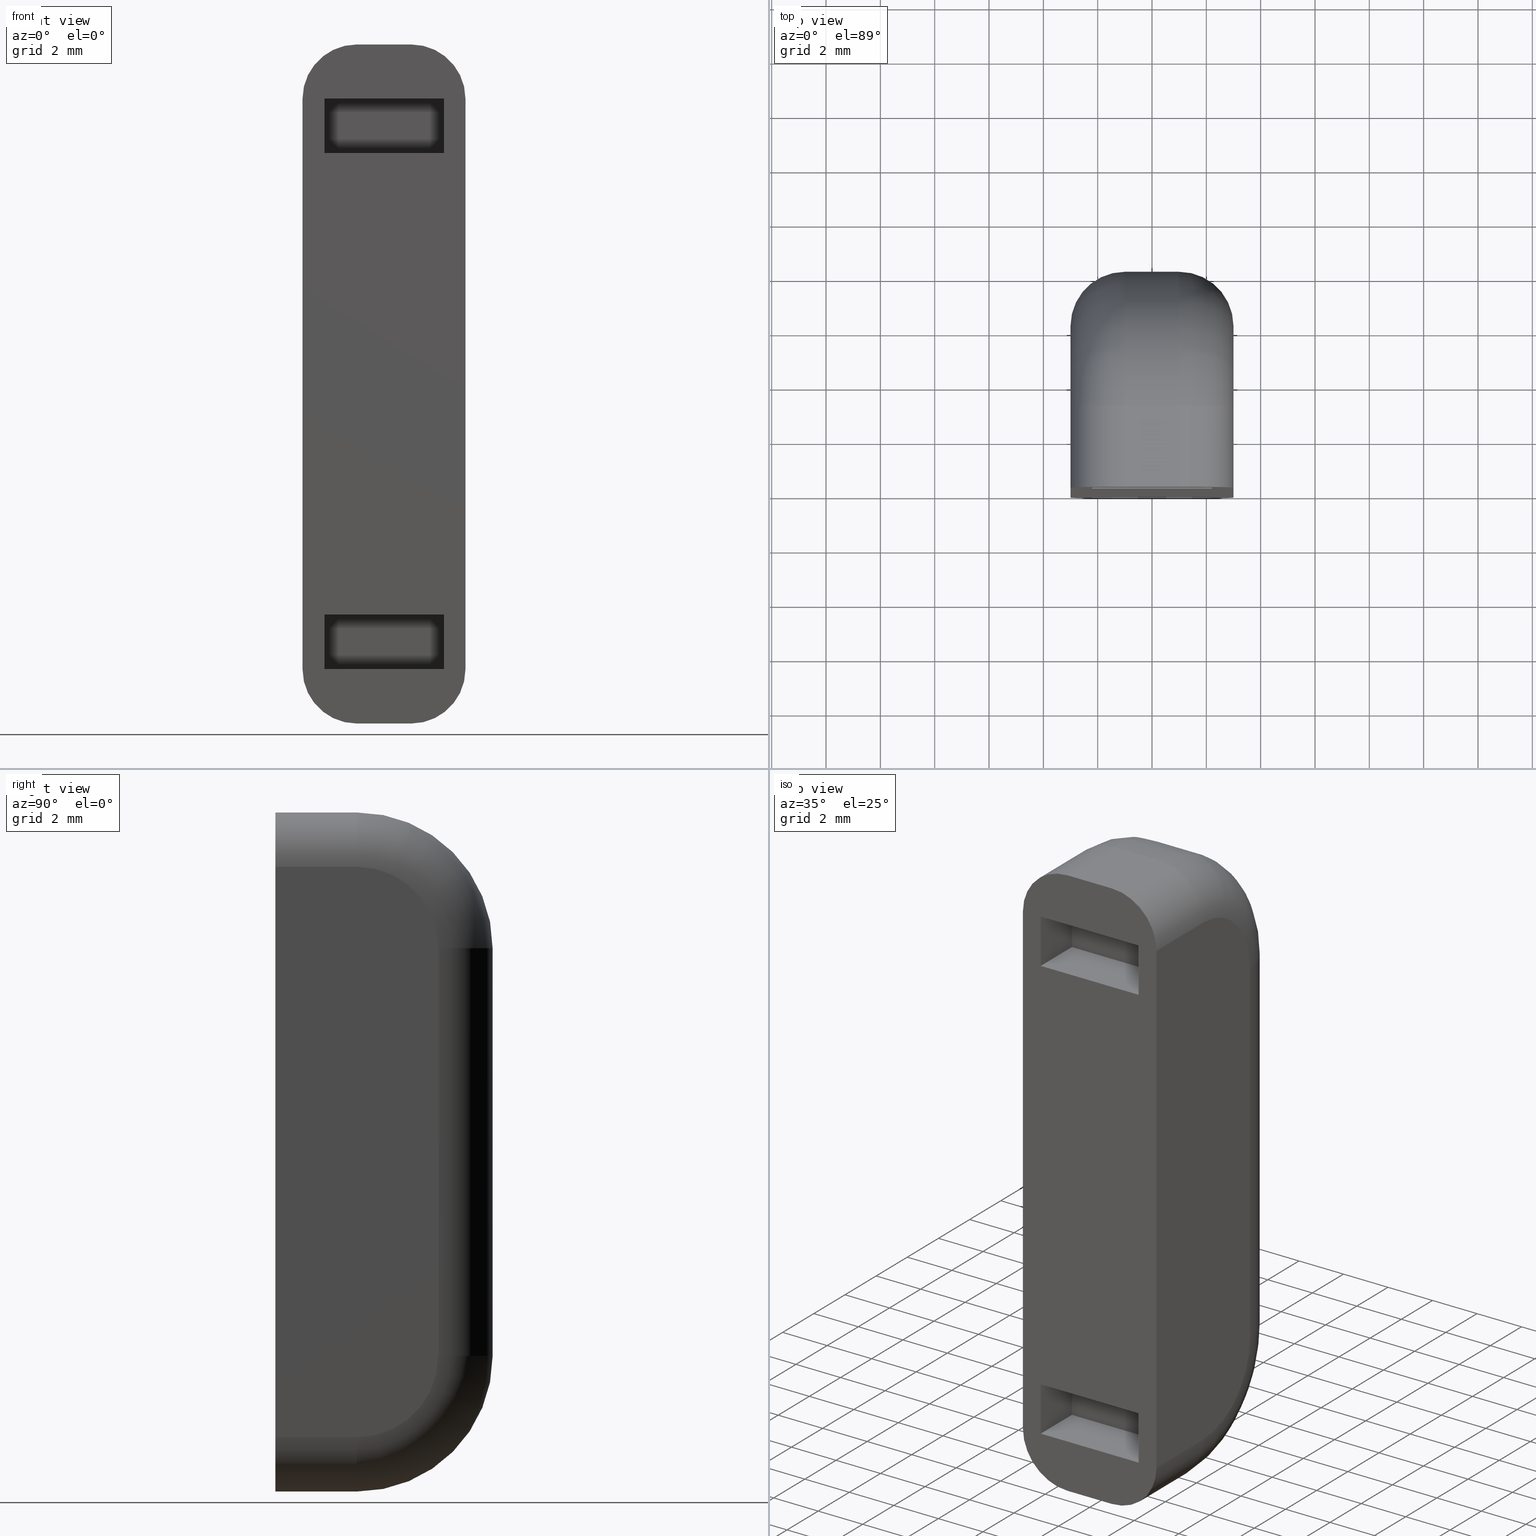
[diagram: canonical four-view strip — front | top / right | iso, engineering-drawing reading convention]
A machine part, canonical four-view strip (front | top / right | iso — engineering-drawing reading convention). The complete STEP part file that produces these views, byte-faithful:
ISO-10303-21;
HEADER;
/* Generated by software containing ST-Developer
 * from STEP Tools, Inc. (www.steptools.com) 
 */

FILE_DESCRIPTION(
/* description */ ('WKZ-0463'),
/* implementation_level */ '2;1');

FILE_NAME(
/* name */ 'O_3_01_01_03_00_WKZ-0463.stp',
/* time_stamp */ '2025-06-02T15:32:41+02:00',
/* author */ ('d.fischer'),
/* organization */ (''),
/* preprocessor_version */ 'ST-DEVELOPER v20',
/* originating_system */ 'Autodesk Inventor 2025',
/* authorisation */ '');

FILE_SCHEMA (('AUTOMOTIVE_DESIGN { 1 0 10303 214 3 1 1 }'));
ENDSEC;

DATA;
#10=MECHANICAL_DESIGN_GEOMETRIC_PRESENTATION_REPRESENTATION('',(#13),#820);
#11=SHAPE_REPRESENTATION_RELATIONSHIP('SRR','None',#827,#12);
#12=ADVANCED_BREP_SHAPE_REPRESENTATION('',(#14),#819);
#13=STYLED_ITEM('',(#836),#14);
#14=MANIFOLD_SOLID_BREP('Volumenk\X\F6rper1',#471);
#15=TOROIDAL_SURFACE('',#517,3.,2.);
#16=TOROIDAL_SURFACE('',#522,3.,2.);
#17=TOROIDAL_SURFACE('',#535,3.,2.);
#18=TOROIDAL_SURFACE('',#539,3.,2.);
#19=CYLINDRICAL_SURFACE('',#515,2.);
#20=CYLINDRICAL_SURFACE('',#520,2.);
#21=CYLINDRICAL_SURFACE('',#525,2.);
#22=CYLINDRICAL_SURFACE('',#527,5.);
#23=CYLINDRICAL_SURFACE('',#530,5.);
#24=CYLINDRICAL_SURFACE('',#533,2.);
#25=CYLINDRICAL_SURFACE('',#537,2.);
#26=CYLINDRICAL_SURFACE('',#541,2.);
#27=FACE_BOUND('',#90,.T.);
#28=FACE_BOUND('',#91,.T.);
#29=CIRCLE('',#505,3.);
#30=CIRCLE('',#506,3.);
#31=CIRCLE('',#508,3.);
#32=CIRCLE('',#509,3.);
#33=CIRCLE('',#511,2.);
#34=CIRCLE('',#512,2.);
#35=CIRCLE('',#513,2.);
#36=CIRCLE('',#514,2.);
#37=CIRCLE('',#516,2.);
#38=CIRCLE('',#518,1.99999999999998);
#39=CIRCLE('',#519,5.);
#40=CIRCLE('',#521,2.);
#41=CIRCLE('',#523,1.99999999999998);
#42=CIRCLE('',#524,5.);
#43=CIRCLE('',#528,5.);
#44=CIRCLE('',#531,5.);
#45=CIRCLE('',#534,2.);
#46=CIRCLE('',#536,1.99999999999999);
#47=CIRCLE('',#538,2.);
#48=CIRCLE('',#540,1.99999999999999);
#49=FACE_OUTER_BOUND('',#77,.T.);
#50=FACE_OUTER_BOUND('',#78,.T.);
#51=FACE_OUTER_BOUND('',#79,.T.);
#52=FACE_OUTER_BOUND('',#80,.T.);
#53=FACE_OUTER_BOUND('',#81,.T.);
#54=FACE_OUTER_BOUND('',#82,.T.);
#55=FACE_OUTER_BOUND('',#83,.T.);
#56=FACE_OUTER_BOUND('',#84,.T.);
#57=FACE_OUTER_BOUND('',#85,.T.);
#58=FACE_OUTER_BOUND('',#86,.T.);
#59=FACE_OUTER_BOUND('',#87,.T.);
#60=FACE_OUTER_BOUND('',#88,.T.);
#61=FACE_OUTER_BOUND('',#89,.T.);
#62=FACE_OUTER_BOUND('',#92,.T.);
#63=FACE_OUTER_BOUND('',#93,.T.);
#64=FACE_OUTER_BOUND('',#94,.T.);
#65=FACE_OUTER_BOUND('',#95,.T.);
#66=FACE_OUTER_BOUND('',#96,.T.);
#67=FACE_OUTER_BOUND('',#97,.T.);
#68=FACE_OUTER_BOUND('',#98,.T.);
#69=FACE_OUTER_BOUND('',#99,.T.);
#70=FACE_OUTER_BOUND('',#100,.T.);
#71=FACE_OUTER_BOUND('',#101,.T.);
#72=FACE_OUTER_BOUND('',#102,.T.);
#73=FACE_OUTER_BOUND('',#103,.T.);
#74=FACE_OUTER_BOUND('',#104,.T.);
#75=FACE_OUTER_BOUND('',#105,.T.);
#76=FACE_OUTER_BOUND('',#106,.T.);
#77=EDGE_LOOP('',(#299,#300,#301,#302));
#78=EDGE_LOOP('',(#303,#304,#305,#306));
#79=EDGE_LOOP('',(#307,#308,#309,#310));
#80=EDGE_LOOP('',(#311,#312,#313,#314));
#81=EDGE_LOOP('',(#315,#316,#317,#318));
#82=EDGE_LOOP('',(#319,#320,#321,#322));
#83=EDGE_LOOP('',(#323,#324,#325,#326));
#84=EDGE_LOOP('',(#327,#328,#329,#330));
#85=EDGE_LOOP('',(#331,#332,#333,#334));
#86=EDGE_LOOP('',(#335,#336,#337,#338));
#87=EDGE_LOOP('',(#339,#340,#341,#342,#343,#344));
#88=EDGE_LOOP('',(#345,#346,#347,#348,#349,#350));
#89=EDGE_LOOP('',(#351,#352,#353,#354,#355,#356,#357,#358));
#90=EDGE_LOOP('',(#359,#360,#361,#362));
#91=EDGE_LOOP('',(#363,#364,#365,#366));
#92=EDGE_LOOP('',(#367,#368,#369,#370));
#93=EDGE_LOOP('',(#371,#372,#373,#374));
#94=EDGE_LOOP('',(#375,#376,#377,#378));
#95=EDGE_LOOP('',(#379,#380,#381,#382));
#96=EDGE_LOOP('',(#383,#384,#385,#386));
#97=EDGE_LOOP('',(#387,#388,#389,#390));
#98=EDGE_LOOP('',(#391,#392,#393,#394));
#99=EDGE_LOOP('',(#395,#396,#397,#398));
#100=EDGE_LOOP('',(#399,#400,#401,#402));
#101=EDGE_LOOP('',(#403,#404,#405,#406));
#102=EDGE_LOOP('',(#407,#408,#409,#410));
#103=EDGE_LOOP('',(#411,#412,#413,#414));
#104=EDGE_LOOP('',(#415,#416,#417,#418));
#105=EDGE_LOOP('',(#419,#420,#421,#422));
#106=EDGE_LOOP('',(#423,#424,#425,#426));
#107=LINE('',#688,#151);
#108=LINE('',#690,#152);
#109=LINE('',#692,#153);
#110=LINE('',#693,#154);
#111=LINE('',#697,#155);
#112=LINE('',#699,#156);
#113=LINE('',#701,#157);
#114=LINE('',#702,#158);
#115=LINE('',#705,#159);
#116=LINE('',#707,#160);
#117=LINE('',#708,#161);
#118=LINE('',#711,#162);
#119=LINE('',#712,#163);
#120=LINE('',#715,#164);
#121=LINE('',#717,#165);
#122=LINE('',#718,#166);
#123=LINE('',#721,#167);
#124=LINE('',#722,#168);
#125=LINE('',#725,#169);
#126=LINE('',#727,#170);
#127=LINE('',#728,#171);
#128=LINE('',#730,#172);
#129=LINE('',#732,#173);
#130=LINE('',#733,#174);
#131=LINE('',#738,#175);
#132=LINE('',#740,#176);
#133=LINE('',#744,#177);
#134=LINE('',#747,#178);
#135=LINE('',#751,#179);
#136=LINE('',#753,#180);
#137=LINE('',#757,#181);
#138=LINE('',#760,#182);
#139=LINE('',#765,#183);
#140=LINE('',#770,#184);
#141=LINE('',#775,#185);
#142=LINE('',#783,#186);
#143=LINE('',#789,#187);
#144=LINE('',#792,#188);
#145=LINE('',#793,#189);
#146=LINE('',#796,#190);
#147=LINE('',#800,#191);
#148=LINE('',#801,#192);
#149=LINE('',#804,#193);
#150=LINE('',#807,#194);
#151=VECTOR('',#546,10.);
#152=VECTOR('',#547,10.);
#153=VECTOR('',#548,10.);
#154=VECTOR('',#549,10.);
#155=VECTOR('',#552,10.);
#156=VECTOR('',#553,10.);
#157=VECTOR('',#554,10.);
#158=VECTOR('',#555,10.);
#159=VECTOR('',#558,10.);
#160=VECTOR('',#559,10.);
#161=VECTOR('',#560,10.);
#162=VECTOR('',#563,10.);
#163=VECTOR('',#564,10.);
#164=VECTOR('',#567,10.);
#165=VECTOR('',#568,10.);
#166=VECTOR('',#569,10.);
#167=VECTOR('',#572,10.);
#168=VECTOR('',#573,10.);
#169=VECTOR('',#576,10.);
#170=VECTOR('',#577,10.);
#171=VECTOR('',#578,10.);
#172=VECTOR('',#581,10.);
#173=VECTOR('',#584,10.);
#174=VECTOR('',#585,10.);
#175=VECTOR('',#590,10.);
#176=VECTOR('',#591,10.);
#177=VECTOR('',#594,10.);
#178=VECTOR('',#597,10.);
#179=VECTOR('',#600,10.);
#180=VECTOR('',#601,10.);
#181=VECTOR('',#604,10.);
#182=VECTOR('',#607,10.);
#183=VECTOR('',#612,10.);
#184=VECTOR('',#617,10.);
#185=VECTOR('',#624,10.);
#186=VECTOR('',#635,10.);
#187=VECTOR('',#644,10.);
#188=VECTOR('',#647,10.);
#189=VECTOR('',#648,10.);
#190=VECTOR('',#651,10.);
#191=VECTOR('',#656,10.);
#192=VECTOR('',#657,10.);
#193=VECTOR('',#660,10.);
#194=VECTOR('',#665,10.);
#195=VERTEX_POINT('',#686);
#196=VERTEX_POINT('',#687);
#197=VERTEX_POINT('',#689);
#198=VERTEX_POINT('',#691);
#199=VERTEX_POINT('',#695);
#200=VERTEX_POINT('',#696);
#201=VERTEX_POINT('',#698);
#202=VERTEX_POINT('',#700);
#203=VERTEX_POINT('',#704);
#204=VERTEX_POINT('',#706);
#205=VERTEX_POINT('',#710);
#206=VERTEX_POINT('',#714);
#207=VERTEX_POINT('',#716);
#208=VERTEX_POINT('',#720);
#209=VERTEX_POINT('',#724);
#210=VERTEX_POINT('',#726);
#211=VERTEX_POINT('',#736);
#212=VERTEX_POINT('',#737);
#213=VERTEX_POINT('',#739);
#214=VERTEX_POINT('',#741);
#215=VERTEX_POINT('',#743);
#216=VERTEX_POINT('',#745);
#217=VERTEX_POINT('',#749);
#218=VERTEX_POINT('',#750);
#219=VERTEX_POINT('',#752);
#220=VERTEX_POINT('',#754);
#221=VERTEX_POINT('',#756);
#222=VERTEX_POINT('',#758);
#223=VERTEX_POINT('',#762);
#224=VERTEX_POINT('',#764);
#225=VERTEX_POINT('',#767);
#226=VERTEX_POINT('',#769);
#227=VERTEX_POINT('',#773);
#228=VERTEX_POINT('',#777);
#229=VERTEX_POINT('',#781);
#230=VERTEX_POINT('',#785);
#231=VERTEX_POINT('',#791);
#232=VERTEX_POINT('',#795);
#233=VERTEX_POINT('',#799);
#234=VERTEX_POINT('',#803);
#235=EDGE_CURVE('',#195,#196,#107,.T.);
#236=EDGE_CURVE('',#197,#195,#108,.T.);
#237=EDGE_CURVE('',#198,#197,#109,.T.);
#238=EDGE_CURVE('',#196,#198,#110,.T.);
#239=EDGE_CURVE('',#199,#200,#111,.T.);
#240=EDGE_CURVE('',#201,#199,#112,.T.);
#241=EDGE_CURVE('',#202,#201,#113,.T.);
#242=EDGE_CURVE('',#200,#202,#114,.T.);
#243=EDGE_CURVE('',#195,#203,#115,.T.);
#244=EDGE_CURVE('',#203,#204,#116,.T.);
#245=EDGE_CURVE('',#197,#204,#117,.T.);
#246=EDGE_CURVE('',#196,#205,#118,.T.);
#247=EDGE_CURVE('',#205,#203,#119,.T.);
#248=EDGE_CURVE('',#200,#206,#120,.T.);
#249=EDGE_CURVE('',#206,#207,#121,.T.);
#250=EDGE_CURVE('',#199,#207,#122,.T.);
#251=EDGE_CURVE('',#208,#205,#123,.T.);
#252=EDGE_CURVE('',#208,#204,#124,.T.);
#253=EDGE_CURVE('',#209,#206,#125,.T.);
#254=EDGE_CURVE('',#210,#209,#126,.T.);
#255=EDGE_CURVE('',#210,#207,#127,.T.);
#256=EDGE_CURVE('',#208,#198,#128,.T.);
#257=EDGE_CURVE('',#210,#201,#129,.T.);
#258=EDGE_CURVE('',#202,#209,#130,.T.);
#259=EDGE_CURVE('',#211,#212,#131,.T.);
#260=EDGE_CURVE('',#213,#212,#132,.T.);
#261=EDGE_CURVE('',#214,#213,#29,.T.);
#262=EDGE_CURVE('',#215,#214,#133,.T.);
#263=EDGE_CURVE('',#216,#215,#30,.T.);
#264=EDGE_CURVE('',#211,#216,#134,.T.);
#265=EDGE_CURVE('',#217,#218,#135,.T.);
#266=EDGE_CURVE('',#219,#217,#136,.T.);
#267=EDGE_CURVE('',#220,#219,#31,.T.);
#268=EDGE_CURVE('',#221,#220,#137,.T.);
#269=EDGE_CURVE('',#222,#221,#32,.T.);
#270=EDGE_CURVE('',#218,#222,#138,.T.);
#271=EDGE_CURVE('',#223,#218,#33,.T.);
#272=EDGE_CURVE('',#224,#223,#139,.T.);
#273=EDGE_CURVE('',#212,#224,#34,.T.);
#274=EDGE_CURVE('',#225,#211,#35,.T.);
#275=EDGE_CURVE('',#226,#225,#140,.T.);
#276=EDGE_CURVE('',#217,#226,#36,.T.);
#277=EDGE_CURVE('',#216,#227,#37,.T.);
#278=EDGE_CURVE('',#227,#225,#141,.T.);
#279=EDGE_CURVE('',#215,#228,#38,.T.);
#280=EDGE_CURVE('',#228,#227,#39,.T.);
#281=EDGE_CURVE('',#214,#229,#40,.T.);
#282=EDGE_CURVE('',#229,#228,#142,.T.);
#283=EDGE_CURVE('',#213,#230,#41,.T.);
#284=EDGE_CURVE('',#230,#229,#42,.T.);
#285=EDGE_CURVE('',#224,#230,#143,.T.);
#286=EDGE_CURVE('',#231,#227,#144,.T.);
#287=EDGE_CURVE('',#226,#231,#145,.T.);
#288=EDGE_CURVE('',#228,#232,#146,.T.);
#289=EDGE_CURVE('',#231,#232,#43,.T.);
#290=EDGE_CURVE('',#233,#229,#147,.T.);
#291=EDGE_CURVE('',#232,#233,#148,.T.);
#292=EDGE_CURVE('',#230,#234,#149,.T.);
#293=EDGE_CURVE('',#233,#234,#44,.T.);
#294=EDGE_CURVE('',#234,#223,#150,.T.);
#295=EDGE_CURVE('',#222,#234,#45,.T.);
#296=EDGE_CURVE('',#221,#233,#46,.T.);
#297=EDGE_CURVE('',#220,#232,#47,.T.);
#298=EDGE_CURVE('',#219,#231,#48,.T.);
#299=ORIENTED_EDGE('',*,*,#235,.F.);
#300=ORIENTED_EDGE('',*,*,#236,.F.);
#301=ORIENTED_EDGE('',*,*,#237,.F.);
#302=ORIENTED_EDGE('',*,*,#238,.F.);
#303=ORIENTED_EDGE('',*,*,#239,.F.);
#304=ORIENTED_EDGE('',*,*,#240,.F.);
#305=ORIENTED_EDGE('',*,*,#241,.F.);
#306=ORIENTED_EDGE('',*,*,#242,.F.);
#307=ORIENTED_EDGE('',*,*,#236,.T.);
#308=ORIENTED_EDGE('',*,*,#243,.T.);
#309=ORIENTED_EDGE('',*,*,#244,.T.);
#310=ORIENTED_EDGE('',*,*,#245,.F.);
#311=ORIENTED_EDGE('',*,*,#235,.T.);
#312=ORIENTED_EDGE('',*,*,#246,.T.);
#313=ORIENTED_EDGE('',*,*,#247,.T.);
#314=ORIENTED_EDGE('',*,*,#243,.F.);
#315=ORIENTED_EDGE('',*,*,#239,.T.);
#316=ORIENTED_EDGE('',*,*,#248,.T.);
#317=ORIENTED_EDGE('',*,*,#249,.T.);
#318=ORIENTED_EDGE('',*,*,#250,.F.);
#319=ORIENTED_EDGE('',*,*,#247,.F.);
#320=ORIENTED_EDGE('',*,*,#251,.F.);
#321=ORIENTED_EDGE('',*,*,#252,.T.);
#322=ORIENTED_EDGE('',*,*,#244,.F.);
#323=ORIENTED_EDGE('',*,*,#249,.F.);
#324=ORIENTED_EDGE('',*,*,#253,.F.);
#325=ORIENTED_EDGE('',*,*,#254,.F.);
#326=ORIENTED_EDGE('',*,*,#255,.T.);
#327=ORIENTED_EDGE('',*,*,#238,.T.);
#328=ORIENTED_EDGE('',*,*,#256,.F.);
#329=ORIENTED_EDGE('',*,*,#251,.T.);
#330=ORIENTED_EDGE('',*,*,#246,.F.);
#331=ORIENTED_EDGE('',*,*,#241,.T.);
#332=ORIENTED_EDGE('',*,*,#257,.F.);
#333=ORIENTED_EDGE('',*,*,#254,.T.);
#334=ORIENTED_EDGE('',*,*,#258,.F.);
#335=ORIENTED_EDGE('',*,*,#242,.T.);
#336=ORIENTED_EDGE('',*,*,#258,.T.);
#337=ORIENTED_EDGE('',*,*,#253,.T.);
#338=ORIENTED_EDGE('',*,*,#248,.F.);
#339=ORIENTED_EDGE('',*,*,#259,.T.);
#340=ORIENTED_EDGE('',*,*,#260,.F.);
#341=ORIENTED_EDGE('',*,*,#261,.F.);
#342=ORIENTED_EDGE('',*,*,#262,.F.);
#343=ORIENTED_EDGE('',*,*,#263,.F.);
#344=ORIENTED_EDGE('',*,*,#264,.F.);
#345=ORIENTED_EDGE('',*,*,#265,.F.);
#346=ORIENTED_EDGE('',*,*,#266,.F.);
#347=ORIENTED_EDGE('',*,*,#267,.F.);
#348=ORIENTED_EDGE('',*,*,#268,.F.);
#349=ORIENTED_EDGE('',*,*,#269,.F.);
#350=ORIENTED_EDGE('',*,*,#270,.F.);
#351=ORIENTED_EDGE('',*,*,#265,.T.);
#352=ORIENTED_EDGE('',*,*,#271,.F.);
#353=ORIENTED_EDGE('',*,*,#272,.F.);
#354=ORIENTED_EDGE('',*,*,#273,.F.);
#355=ORIENTED_EDGE('',*,*,#259,.F.);
#356=ORIENTED_EDGE('',*,*,#274,.F.);
#357=ORIENTED_EDGE('',*,*,#275,.F.);
#358=ORIENTED_EDGE('',*,*,#276,.F.);
#359=ORIENTED_EDGE('',*,*,#245,.T.);
#360=ORIENTED_EDGE('',*,*,#252,.F.);
#361=ORIENTED_EDGE('',*,*,#256,.T.);
#362=ORIENTED_EDGE('',*,*,#237,.T.);
#363=ORIENTED_EDGE('',*,*,#240,.T.);
#364=ORIENTED_EDGE('',*,*,#250,.T.);
#365=ORIENTED_EDGE('',*,*,#255,.F.);
#366=ORIENTED_EDGE('',*,*,#257,.T.);
#367=ORIENTED_EDGE('',*,*,#274,.T.);
#368=ORIENTED_EDGE('',*,*,#264,.T.);
#369=ORIENTED_EDGE('',*,*,#277,.T.);
#370=ORIENTED_EDGE('',*,*,#278,.T.);
#371=ORIENTED_EDGE('',*,*,#279,.T.);
#372=ORIENTED_EDGE('',*,*,#280,.T.);
#373=ORIENTED_EDGE('',*,*,#277,.F.);
#374=ORIENTED_EDGE('',*,*,#263,.T.);
#375=ORIENTED_EDGE('',*,*,#281,.T.);
#376=ORIENTED_EDGE('',*,*,#282,.T.);
#377=ORIENTED_EDGE('',*,*,#279,.F.);
#378=ORIENTED_EDGE('',*,*,#262,.T.);
#379=ORIENTED_EDGE('',*,*,#283,.T.);
#380=ORIENTED_EDGE('',*,*,#284,.T.);
#381=ORIENTED_EDGE('',*,*,#281,.F.);
#382=ORIENTED_EDGE('',*,*,#261,.T.);
#383=ORIENTED_EDGE('',*,*,#273,.T.);
#384=ORIENTED_EDGE('',*,*,#285,.T.);
#385=ORIENTED_EDGE('',*,*,#283,.F.);
#386=ORIENTED_EDGE('',*,*,#260,.T.);
#387=ORIENTED_EDGE('',*,*,#278,.F.);
#388=ORIENTED_EDGE('',*,*,#286,.F.);
#389=ORIENTED_EDGE('',*,*,#287,.F.);
#390=ORIENTED_EDGE('',*,*,#275,.T.);
#391=ORIENTED_EDGE('',*,*,#280,.F.);
#392=ORIENTED_EDGE('',*,*,#288,.T.);
#393=ORIENTED_EDGE('',*,*,#289,.F.);
#394=ORIENTED_EDGE('',*,*,#286,.T.);
#395=ORIENTED_EDGE('',*,*,#282,.F.);
#396=ORIENTED_EDGE('',*,*,#290,.F.);
#397=ORIENTED_EDGE('',*,*,#291,.F.);
#398=ORIENTED_EDGE('',*,*,#288,.F.);
#399=ORIENTED_EDGE('',*,*,#284,.F.);
#400=ORIENTED_EDGE('',*,*,#292,.T.);
#401=ORIENTED_EDGE('',*,*,#293,.F.);
#402=ORIENTED_EDGE('',*,*,#290,.T.);
#403=ORIENTED_EDGE('',*,*,#285,.F.);
#404=ORIENTED_EDGE('',*,*,#272,.T.);
#405=ORIENTED_EDGE('',*,*,#294,.F.);
#406=ORIENTED_EDGE('',*,*,#292,.F.);
#407=ORIENTED_EDGE('',*,*,#271,.T.);
#408=ORIENTED_EDGE('',*,*,#270,.T.);
#409=ORIENTED_EDGE('',*,*,#295,.T.);
#410=ORIENTED_EDGE('',*,*,#294,.T.);
#411=ORIENTED_EDGE('',*,*,#296,.T.);
#412=ORIENTED_EDGE('',*,*,#293,.T.);
#413=ORIENTED_EDGE('',*,*,#295,.F.);
#414=ORIENTED_EDGE('',*,*,#269,.T.);
#415=ORIENTED_EDGE('',*,*,#297,.T.);
#416=ORIENTED_EDGE('',*,*,#291,.T.);
#417=ORIENTED_EDGE('',*,*,#296,.F.);
#418=ORIENTED_EDGE('',*,*,#268,.T.);
#419=ORIENTED_EDGE('',*,*,#298,.T.);
#420=ORIENTED_EDGE('',*,*,#289,.T.);
#421=ORIENTED_EDGE('',*,*,#297,.F.);
#422=ORIENTED_EDGE('',*,*,#267,.T.);
#423=ORIENTED_EDGE('',*,*,#276,.T.);
#424=ORIENTED_EDGE('',*,*,#287,.T.);
#425=ORIENTED_EDGE('',*,*,#298,.F.);
#426=ORIENTED_EDGE('',*,*,#266,.T.);
#427=PLANE('',#494);
#428=PLANE('',#495);
#429=PLANE('',#496);
#430=PLANE('',#497);
#431=PLANE('',#498);
#432=PLANE('',#499);
#433=PLANE('',#500);
#434=PLANE('',#501);
#435=PLANE('',#502);
#436=PLANE('',#503);
#437=PLANE('',#504);
#438=PLANE('',#507);
#439=PLANE('',#510);
#440=PLANE('',#526);
#441=PLANE('',#529);
#442=PLANE('',#532);
#443=ADVANCED_FACE('',(#49),#427,.F.);
#444=ADVANCED_FACE('',(#50),#428,.F.);
#445=ADVANCED_FACE('',(#51),#429,.F.);
#446=ADVANCED_FACE('',(#52),#430,.F.);
#447=ADVANCED_FACE('',(#53),#431,.F.);
#448=ADVANCED_FACE('',(#54),#432,.T.);
#449=ADVANCED_FACE('',(#55),#433,.T.);
#450=ADVANCED_FACE('',(#56),#434,.F.);
#451=ADVANCED_FACE('',(#57),#435,.F.);
#452=ADVANCED_FACE('',(#58),#436,.F.);
#453=ADVANCED_FACE('',(#59),#437,.T.);
#454=ADVANCED_FACE('',(#60),#438,.T.);
#455=ADVANCED_FACE('',(#61,#27,#28),#439,.T.);
#456=ADVANCED_FACE('',(#62),#19,.T.);
#457=ADVANCED_FACE('',(#63),#15,.T.);
#458=ADVANCED_FACE('',(#64),#20,.T.);
#459=ADVANCED_FACE('',(#65),#16,.T.);
#460=ADVANCED_FACE('',(#66),#21,.T.);
#461=ADVANCED_FACE('',(#67),#440,.T.);
#462=ADVANCED_FACE('',(#68),#22,.T.);
#463=ADVANCED_FACE('',(#69),#441,.T.);
#464=ADVANCED_FACE('',(#70),#23,.T.);
#465=ADVANCED_FACE('',(#71),#442,.F.);
#466=ADVANCED_FACE('',(#72),#24,.T.);
#467=ADVANCED_FACE('',(#73),#17,.T.);
#468=ADVANCED_FACE('',(#74),#25,.T.);
#469=ADVANCED_FACE('',(#75),#18,.T.);
#470=ADVANCED_FACE('',(#76),#26,.T.);
#471=CLOSED_SHELL('',(#443,#444,#445,#446,#447,#448,#449,#450,#451,#452,
#453,#454,#455,#456,#457,#458,#459,#460,#461,#462,#463,#464,#465,#466,#467,
#468,#469,#470));
#472=DERIVED_UNIT_ELEMENT(#475,1.);
#473=DERIVED_UNIT_ELEMENT(#822,-3.);
#474=DIMENSIONAL_EXPONENTS(0.,1.,0.,0.,0.,0.,0.);
#475=(
CONVERSION_BASED_UNIT('gram',#477)
MASS_UNIT()
NAMED_UNIT(#474)
);
#476=(
MASS_UNIT()
NAMED_UNIT(*)
SI_UNIT(.KILO.,.GRAM.)
);
#477=MASS_MEASURE_WITH_UNIT(MASS_MEASURE(0.001),#476);
#478=DERIVED_UNIT((#472,#473));
#479=MEASURE_REPRESENTATION_ITEM('density measure',
POSITIVE_RATIO_MEASURE(1.),#478);
#480=PROPERTY_DEFINITION_REPRESENTATION(#485,#482);
#481=PROPERTY_DEFINITION_REPRESENTATION(#486,#483);
#482=REPRESENTATION('material name',(#484),#819);
#483=REPRESENTATION('density',(#479),#819);
#484=DESCRIPTIVE_REPRESENTATION_ITEM('Allgemein','Allgemein');
#485=PROPERTY_DEFINITION('material property','material name',#829);
#486=PROPERTY_DEFINITION('material property','density of part',#829);
#487=DATE_TIME_ROLE('creation_date');
#488=APPLIED_DATE_AND_TIME_ASSIGNMENT(#489,#487,(#829));
#489=DATE_AND_TIME(#490,#491);
#490=CALENDAR_DATE(2024,28,10);
#491=LOCAL_TIME(0,0,0.,#492);
#492=COORDINATED_UNIVERSAL_TIME_OFFSET(0,0,.BEHIND.);
#493=AXIS2_PLACEMENT_3D('',#684,#542,#543);
#494=AXIS2_PLACEMENT_3D('',#685,#544,#545);
#495=AXIS2_PLACEMENT_3D('',#694,#550,#551);
#496=AXIS2_PLACEMENT_3D('',#703,#556,#557);
#497=AXIS2_PLACEMENT_3D('',#709,#561,#562);
#498=AXIS2_PLACEMENT_3D('',#713,#565,#566);
#499=AXIS2_PLACEMENT_3D('',#719,#570,#571);
#500=AXIS2_PLACEMENT_3D('',#723,#574,#575);
#501=AXIS2_PLACEMENT_3D('',#729,#579,#580);
#502=AXIS2_PLACEMENT_3D('',#731,#582,#583);
#503=AXIS2_PLACEMENT_3D('',#734,#586,#587);
#504=AXIS2_PLACEMENT_3D('',#735,#588,#589);
#505=AXIS2_PLACEMENT_3D('',#742,#592,#593);
#506=AXIS2_PLACEMENT_3D('',#746,#595,#596);
#507=AXIS2_PLACEMENT_3D('',#748,#598,#599);
#508=AXIS2_PLACEMENT_3D('',#755,#602,#603);
#509=AXIS2_PLACEMENT_3D('',#759,#605,#606);
#510=AXIS2_PLACEMENT_3D('',#761,#608,#609);
#511=AXIS2_PLACEMENT_3D('',#763,#610,#611);
#512=AXIS2_PLACEMENT_3D('',#766,#613,#614);
#513=AXIS2_PLACEMENT_3D('',#768,#615,#616);
#514=AXIS2_PLACEMENT_3D('',#771,#618,#619);
#515=AXIS2_PLACEMENT_3D('',#772,#620,#621);
#516=AXIS2_PLACEMENT_3D('',#774,#622,#623);
#517=AXIS2_PLACEMENT_3D('',#776,#625,#626);
#518=AXIS2_PLACEMENT_3D('',#778,#627,#628);
#519=AXIS2_PLACEMENT_3D('',#779,#629,#630);
#520=AXIS2_PLACEMENT_3D('',#780,#631,#632);
#521=AXIS2_PLACEMENT_3D('',#782,#633,#634);
#522=AXIS2_PLACEMENT_3D('',#784,#636,#637);
#523=AXIS2_PLACEMENT_3D('',#786,#638,#639);
#524=AXIS2_PLACEMENT_3D('',#787,#640,#641);
#525=AXIS2_PLACEMENT_3D('',#788,#642,#643);
#526=AXIS2_PLACEMENT_3D('',#790,#645,#646);
#527=AXIS2_PLACEMENT_3D('',#794,#649,#650);
#528=AXIS2_PLACEMENT_3D('',#797,#652,#653);
#529=AXIS2_PLACEMENT_3D('',#798,#654,#655);
#530=AXIS2_PLACEMENT_3D('',#802,#658,#659);
#531=AXIS2_PLACEMENT_3D('',#805,#661,#662);
#532=AXIS2_PLACEMENT_3D('',#806,#663,#664);
#533=AXIS2_PLACEMENT_3D('',#808,#666,#667);
#534=AXIS2_PLACEMENT_3D('',#809,#668,#669);
#535=AXIS2_PLACEMENT_3D('',#810,#670,#671);
#536=AXIS2_PLACEMENT_3D('',#811,#672,#673);
#537=AXIS2_PLACEMENT_3D('',#812,#674,#675);
#538=AXIS2_PLACEMENT_3D('',#813,#676,#677);
#539=AXIS2_PLACEMENT_3D('',#814,#678,#679);
#540=AXIS2_PLACEMENT_3D('',#815,#680,#681);
#541=AXIS2_PLACEMENT_3D('',#816,#682,#683);
#542=DIRECTION('axis',(0.,0.,1.));
#543=DIRECTION('refdir',(1.,0.,0.));
#544=DIRECTION('center_axis',(-1.,-6.93889390390723E-16,0.));
#545=DIRECTION('ref_axis',(0.,0.,1.));
#546=DIRECTION('',(0.,0.,-1.));
#547=DIRECTION('',(-6.93889390390723E-16,1.,6.66133814775094E-15));
#548=DIRECTION('',(4.31408307542741E-32,-7.40148683083438E-17,1.));
#549=DIRECTION('',(6.93889390390723E-16,-1.,4.44089209850062E-15));
#550=DIRECTION('center_axis',(-1.,-6.93889390390723E-16,0.));
#551=DIRECTION('ref_axis',(0.,0.,1.));
#552=DIRECTION('',(-6.93889390390723E-16,1.,-9.7144514654701E-16));
#553=DIRECTION('',(4.31408307542741E-32,-7.40148683083438E-17,1.));
#554=DIRECTION('',(6.93889390390723E-16,-1.,6.38378239159465E-15));
#555=DIRECTION('',(0.,0.,-1.));
#556=DIRECTION('center_axis',(0.,-6.66133814775094E-15,1.));
#557=DIRECTION('ref_axis',(0.,1.,6.66133814775094E-15));
#558=DIRECTION('',(1.,0.,0.));
#559=DIRECTION('',(-6.93889390390723E-16,-1.,-6.66133814775094E-15));
#560=DIRECTION('',(1.,1.85037170770859E-16,1.23259516440783E-30));
#561=DIRECTION('center_axis',(0.,1.,0.));
#562=DIRECTION('ref_axis',(0.,0.,-1.));
#563=DIRECTION('',(1.,0.,0.));
#564=DIRECTION('',(0.,0.,1.));
#565=DIRECTION('center_axis',(0.,9.7144514654701E-16,1.));
#566=DIRECTION('ref_axis',(0.,1.,-9.7144514654701E-16));
#567=DIRECTION('',(1.,0.,0.));
#568=DIRECTION('',(-6.93889390390723E-16,-1.,9.7144514654701E-16));
#569=DIRECTION('',(1.,1.85037170770859E-16,-1.79753461476142E-31));
#570=DIRECTION('center_axis',(-1.,6.93889390390723E-16,0.));
#571=DIRECTION('ref_axis',(0.,0.,1.));
#572=DIRECTION('',(6.93889390390723E-16,1.,-4.44089209850062E-15));
#573=DIRECTION('',(-4.31408307542741E-32,-7.40148683083438E-17,1.));
#574=DIRECTION('center_axis',(-1.,6.93889390390723E-16,0.));
#575=DIRECTION('ref_axis',(0.,0.,1.));
#576=DIRECTION('',(0.,0.,1.));
#577=DIRECTION('',(6.93889390390723E-16,1.,-6.38378239159465E-15));
#578=DIRECTION('',(-4.31408307542741E-32,-7.40148683083438E-17,1.));
#579=DIRECTION('center_axis',(0.,-4.44089209850062E-15,-1.));
#580=DIRECTION('ref_axis',(0.,-1.,4.44089209850062E-15));
#581=DIRECTION('',(-1.,-1.85037170770859E-16,8.21730109605219E-31));
#582=DIRECTION('center_axis',(0.,-6.38378239159465E-15,-1.));
#583=DIRECTION('ref_axis',(0.,-1.,6.38378239159465E-15));
#584=DIRECTION('',(-1.,-1.85037170770859E-16,1.1812370325575E-30));
#585=DIRECTION('',(1.,0.,0.));
#586=DIRECTION('center_axis',(0.,1.,0.));
#587=DIRECTION('ref_axis',(0.,0.,-1.));
#588=DIRECTION('center_axis',(1.,-5.55111512312577E-16,0.));
#589=DIRECTION('ref_axis',(-5.55111512312577E-16,-1.,0.));
#590=DIRECTION('',(4.31408307542741E-32,7.40148683083438E-17,-1.));
#591=DIRECTION('',(-5.55111512312577E-16,-1.,0.));
#592=DIRECTION('center_axis',(-1.,5.55111512312577E-16,0.));
#593=DIRECTION('ref_axis',(3.92523114670943E-16,0.707106781186548,-0.707106781186547));
#594=DIRECTION('',(0.,0.,-1.));
#595=DIRECTION('center_axis',(-1.,5.55111512312577E-16,0.));
#596=DIRECTION('ref_axis',(3.92523114670943E-16,0.707106781186548,0.707106781186547));
#597=DIRECTION('',(5.55111512312577E-16,1.,0.));
#598=DIRECTION('center_axis',(-1.,-2.08166817117217E-16,0.));
#599=DIRECTION('ref_axis',(-2.08166817117217E-16,1.,0.));
#600=DIRECTION('',(-4.31408307542741E-32,7.40148683083438E-17,-1.));
#601=DIRECTION('',(2.08166817117217E-16,-1.,0.));
#602=DIRECTION('center_axis',(1.,2.08166817117217E-16,0.));
#603=DIRECTION('ref_axis',(-1.47196168001604E-16,0.707106781186547,0.707106781186548));
#604=DIRECTION('',(0.,0.,1.));
#605=DIRECTION('center_axis',(1.,2.08166817117217E-16,0.));
#606=DIRECTION('ref_axis',(-1.47196168001604E-16,0.707106781186547,-0.707106781186548));
#607=DIRECTION('',(-2.08166817117217E-16,1.,0.));
#608=DIRECTION('center_axis',(1.85037170770859E-16,-1.,0.));
#609=DIRECTION('ref_axis',(-1.,-1.85037170770859E-16,0.));
#610=DIRECTION('center_axis',(-1.85037170770859E-16,1.,0.));
#611=DIRECTION('ref_axis',(-0.707106781186547,-1.96261557335472E-16,-0.707106781186548));
#612=DIRECTION('',(-1.,-1.85037170770859E-16,0.));
#613=DIRECTION('center_axis',(-1.85037170770859E-16,1.,0.));
#614=DIRECTION('ref_axis',(0.707106781186547,-7.85046229341887E-16,-0.707106781186548));
#615=DIRECTION('center_axis',(-1.85037170770859E-16,1.,0.));
#616=DIRECTION('ref_axis',(0.707106781186548,-7.85046229341888E-16,0.707106781186548));
#617=DIRECTION('',(1.,1.85037170770859E-16,0.));
#618=DIRECTION('center_axis',(-1.85037170770859E-16,1.,0.));
#619=DIRECTION('ref_axis',(-0.707106781186548,-1.96261557335472E-16,0.707106781186547));
#620=DIRECTION('center_axis',(5.55111512312577E-16,1.,0.));
#621=DIRECTION('ref_axis',(0.707106781186548,-7.85046229341888E-16,0.707106781186548));
#622=DIRECTION('center_axis',(-5.55111512312578E-16,-1.,0.));
#623=DIRECTION('ref_axis',(1.,-5.55111512312578E-16,0.));
#624=DIRECTION('',(-5.55111512312577E-16,-1.,0.));
#625=DIRECTION('center_axis',(-1.,5.55111512312577E-16,0.));
#626=DIRECTION('ref_axis',(0.,0.,1.));
#627=DIRECTION('center_axis',(0.,0.,1.));
#628=DIRECTION('ref_axis',(1.,-5.55111512312583E-16,0.));
#629=DIRECTION('center_axis',(1.,-5.55111512312577E-16,0.));
#630=DIRECTION('ref_axis',(3.88578058618805E-16,0.707106781186548,0.707106781186547));
#631=DIRECTION('center_axis',(0.,0.,-1.));
#632=DIRECTION('ref_axis',(0.707106781186547,0.707106781186548,0.));
#633=DIRECTION('center_axis',(0.,0.,1.));
#634=DIRECTION('ref_axis',(1.,-5.55111512312578E-16,0.));
#635=DIRECTION('',(0.,0.,1.));
#636=DIRECTION('center_axis',(-1.,5.55111512312577E-16,0.));
#637=DIRECTION('ref_axis',(0.,0.,1.));
#638=DIRECTION('center_axis',(5.55111512312583E-16,1.,2.7755575615629E-16));
#639=DIRECTION('ref_axis',(1.,-5.55111512312583E-16,0.));
#640=DIRECTION('center_axis',(1.,-5.55111512312577E-16,0.));
#641=DIRECTION('ref_axis',(3.88578058618804E-16,0.707106781186548,-0.707106781186547));
#642=DIRECTION('center_axis',(-5.55111512312577E-16,-1.,0.));
#643=DIRECTION('ref_axis',(0.707106781186547,-7.85046229341887E-16,-0.707106781186548));
#644=DIRECTION('',(5.55111512312577E-16,1.,0.));
#645=DIRECTION('center_axis',(0.,0.,1.));
#646=DIRECTION('ref_axis',(1.,0.,0.));
#647=DIRECTION('',(1.,2.96059473233375E-15,0.));
#648=DIRECTION('',(-2.08166817117217E-16,1.,0.));
#649=DIRECTION('center_axis',(-1.,-2.96059473233375E-15,0.));
#650=DIRECTION('ref_axis',(-2.04112019628891E-15,0.707106781186547,0.707106781186547));
#651=DIRECTION('',(-1.,-2.96059473233375E-15,0.));
#652=DIRECTION('center_axis',(-1.,-2.08166817117217E-16,0.));
#653=DIRECTION('ref_axis',(-1.66533453693774E-16,0.707106781186547,0.707106781186548));
#654=DIRECTION('center_axis',(-2.96059473233375E-15,1.,0.));
#655=DIRECTION('ref_axis',(1.,2.96059473233375E-15,0.));
#656=DIRECTION('',(1.,2.96059473233375E-15,0.));
#657=DIRECTION('',(0.,0.,-1.));
#658=DIRECTION('center_axis',(1.,2.96059473233375E-15,0.));
#659=DIRECTION('ref_axis',(-2.04112019628891E-15,0.707106781186547,-0.707106781186547));
#660=DIRECTION('',(-1.,-2.96059473233375E-15,0.));
#661=DIRECTION('center_axis',(-1.,-2.08166817117217E-16,0.));
#662=DIRECTION('ref_axis',(-1.66533453693774E-16,0.707106781186547,-0.707106781186548));
#663=DIRECTION('center_axis',(0.,0.,1.));
#664=DIRECTION('ref_axis',(1.,0.,0.));
#665=DIRECTION('',(2.08166817117217E-16,-1.,0.));
#666=DIRECTION('center_axis',(-2.08166817117217E-16,1.,0.));
#667=DIRECTION('ref_axis',(-0.707106781186547,-1.96261557335472E-16,-0.707106781186548));
#668=DIRECTION('center_axis',(2.77555756156289E-16,-1.,1.92592994438723E-32));
#669=DIRECTION('ref_axis',(-1.,-2.77555756156289E-16,0.));
#670=DIRECTION('center_axis',(1.,2.08166817117217E-16,0.));
#671=DIRECTION('ref_axis',(0.,0.,-1.));
#672=DIRECTION('center_axis',(0.,0.,-1.));
#673=DIRECTION('ref_axis',(-1.,0.,0.));
#674=DIRECTION('center_axis',(0.,0.,-1.));
#675=DIRECTION('ref_axis',(-0.707106781186549,0.707106781186546,0.));
#676=DIRECTION('center_axis',(0.,0.,-1.));
#677=DIRECTION('ref_axis',(-1.,0.,0.));
#678=DIRECTION('center_axis',(1.,2.08166817117217E-16,0.));
#679=DIRECTION('ref_axis',(0.,0.,-1.));
#680=DIRECTION('center_axis',(0.,1.,-2.77555756156289E-16));
#681=DIRECTION('ref_axis',(-1.,0.,0.));
#682=DIRECTION('center_axis',(2.08166817117217E-16,-1.,0.));
#683=DIRECTION('ref_axis',(-0.707106781186548,-1.96261557335472E-16,0.707106781186547));
#684=CARTESIAN_POINT('',(0.,0.,0.));
#685=CARTESIAN_POINT('Origin',(-2.2,1.,-22.));
#686=CARTESIAN_POINT('',(-2.2,2.,-21.));
#687=CARTESIAN_POINT('',(-2.2,2.,-23.));
#688=CARTESIAN_POINT('',(-2.2,2.,-21.5));
#689=CARTESIAN_POINT('',(-2.2,5.55111512312578E-16,-21.));
#690=CARTESIAN_POINT('',(-2.2,0.499999999999998,-21.));
#691=CARTESIAN_POINT('',(-2.2,5.55111512312578E-16,-23.));
#692=CARTESIAN_POINT('',(-2.2,2.77555756156289E-16,-21.));
#693=CARTESIAN_POINT('',(-2.2,1.5,-23.));
#694=CARTESIAN_POINT('Origin',(-2.2,1.,-3.00000000000001));
#695=CARTESIAN_POINT('',(-2.2,5.55111512312578E-16,-2.));
#696=CARTESIAN_POINT('',(-2.2,2.,-2.));
#697=CARTESIAN_POINT('',(-2.2,0.5,-2.));
#698=CARTESIAN_POINT('',(-2.2,5.55111512312578E-16,-4.));
#699=CARTESIAN_POINT('',(-2.2,2.77555756156289E-16,-2.));
#700=CARTESIAN_POINT('',(-2.2,2.,-4.00000000000001));
#701=CARTESIAN_POINT('',(-2.2,1.5,-4.00000000000001));
#702=CARTESIAN_POINT('',(-2.2,2.,-2.5));
#703=CARTESIAN_POINT('Origin',(0.,1.94289029309402E-15,-21.));
#704=CARTESIAN_POINT('',(2.2,2.,-21.));
#705=CARTESIAN_POINT('',(0.,2.,-21.));
#706=CARTESIAN_POINT('',(2.2,5.55111512312578E-16,-21.));
#707=CARTESIAN_POINT('',(2.2,0.499999999999998,-21.));
#708=CARTESIAN_POINT('',(1.5,-2.77555756156281E-16,-21.));
#709=CARTESIAN_POINT('Origin',(0.,2.,-21.));
#710=CARTESIAN_POINT('',(2.2,2.,-23.));
#711=CARTESIAN_POINT('',(0.,2.,-23.));
#712=CARTESIAN_POINT('',(2.2,2.,-21.5));
#713=CARTESIAN_POINT('Origin',(0.,-1.38777878078145E-15,-2.));
#714=CARTESIAN_POINT('',(2.2,2.,-2.));
#715=CARTESIAN_POINT('',(0.,2.,-2.));
#716=CARTESIAN_POINT('',(2.2,5.55111512312578E-16,-2.));
#717=CARTESIAN_POINT('',(2.2,0.5,-2.));
#718=CARTESIAN_POINT('',(1.5,-2.77555756156289E-16,-2.));
#719=CARTESIAN_POINT('Origin',(2.2,1.,-22.));
#720=CARTESIAN_POINT('',(2.2,5.55111512312578E-16,-23.));
#721=CARTESIAN_POINT('',(2.2,1.5,-23.));
#722=CARTESIAN_POINT('',(2.2,2.77555756156289E-16,-21.));
#723=CARTESIAN_POINT('Origin',(2.2,1.,-3.00000000000001));
#724=CARTESIAN_POINT('',(2.2,2.,-4.00000000000001));
#725=CARTESIAN_POINT('',(2.2,2.,-2.5));
#726=CARTESIAN_POINT('',(2.2,5.55111512312578E-16,-4.));
#727=CARTESIAN_POINT('',(2.2,1.5,-4.00000000000001));
#728=CARTESIAN_POINT('',(2.2,2.77555756156289E-16,-2.));
#729=CARTESIAN_POINT('Origin',(0.,2.,-23.));
#730=CARTESIAN_POINT('',(1.5,-2.77555756156289E-16,-23.));
#731=CARTESIAN_POINT('Origin',(0.,2.,-4.00000000000001));
#732=CARTESIAN_POINT('',(1.5,-2.77555756156289E-16,-4.));
#733=CARTESIAN_POINT('',(0.,2.,-4.00000000000001));
#734=CARTESIAN_POINT('Origin',(0.,2.,-2.));
#735=CARTESIAN_POINT('Origin',(3.,8.00000000000002,0.));
#736=CARTESIAN_POINT('',(3.,0.,-2.));
#737=CARTESIAN_POINT('',(3.,0.,-23.));
#738=CARTESIAN_POINT('',(3.,0.,-21.));
#739=CARTESIAN_POINT('',(3.,3.00000000000001,-23.));
#740=CARTESIAN_POINT('',(3.,6.00000000000001,-23.));
#741=CARTESIAN_POINT('',(3.,6.00000000000001,-20.));
#742=CARTESIAN_POINT('Origin',(3.,3.00000000000001,-20.));
#743=CARTESIAN_POINT('',(3.,6.00000000000001,-5.));
#744=CARTESIAN_POINT('',(3.,6.00000000000001,0.));
#745=CARTESIAN_POINT('',(3.,3.00000000000001,-2.));
#746=CARTESIAN_POINT('Origin',(3.,3.00000000000001,-5.));
#747=CARTESIAN_POINT('',(3.,6.00000000000001,-2.));
#748=CARTESIAN_POINT('Origin',(-3.,-1.11022302462516E-15,0.));
#749=CARTESIAN_POINT('',(-3.,-1.11022302462516E-15,-2.));
#750=CARTESIAN_POINT('',(-3.,-1.11022302462516E-15,-23.));
#751=CARTESIAN_POINT('',(-3.,0.,-21.));
#752=CARTESIAN_POINT('',(-3.,3.,-2.));
#753=CARTESIAN_POINT('',(-3.,2.,-2.));
#754=CARTESIAN_POINT('',(-3.,6.00000000000001,-5.));
#755=CARTESIAN_POINT('Origin',(-3.,3.,-5.));
#756=CARTESIAN_POINT('',(-3.,6.,-20.));
#757=CARTESIAN_POINT('',(-3.,6.00000000000001,0.));
#758=CARTESIAN_POINT('',(-3.,3.,-23.));
#759=CARTESIAN_POINT('Origin',(-3.,3.,-20.));
#760=CARTESIAN_POINT('',(-3.,2.,-23.));
#761=CARTESIAN_POINT('Origin',(3.,0.,0.));
#762=CARTESIAN_POINT('',(-1.,-7.40148683083438E-16,-25.));
#763=CARTESIAN_POINT('Origin',(-1.,-8.32667268468867E-16,-23.));
#764=CARTESIAN_POINT('',(1.,-3.70074341541719E-16,-25.));
#765=CARTESIAN_POINT('',(-3.,-1.11022302462516E-15,-25.));
#766=CARTESIAN_POINT('Origin',(1.,1.11022302462516E-15,-23.));
#767=CARTESIAN_POINT('',(1.,-3.70074341541719E-16,0.));
#768=CARTESIAN_POINT('Origin',(1.,1.11022302462516E-15,-2.));
#769=CARTESIAN_POINT('',(-1.,-7.40148683083438E-16,0.));
#770=CARTESIAN_POINT('',(-3.,-1.11022302462516E-15,0.));
#771=CARTESIAN_POINT('Origin',(-1.,-8.32667268468867E-16,-2.));
#772=CARTESIAN_POINT('Origin',(1.,6.00000000000001,-2.));
#773=CARTESIAN_POINT('',(1.,3.00000000000001,0.));
#774=CARTESIAN_POINT('Origin',(1.,3.00000000000001,-2.));
#775=CARTESIAN_POINT('',(1.,6.00000000000001,0.));
#776=CARTESIAN_POINT('Origin',(1.00000000000002,3.00000000000001,-5.));
#777=CARTESIAN_POINT('',(1.00000000000002,8.00000000000001,-5.));
#778=CARTESIAN_POINT('Origin',(1.00000000000002,6.00000000000001,-5.));
#779=CARTESIAN_POINT('Origin',(1.00000000000002,3.00000000000001,-5.));
#780=CARTESIAN_POINT('Origin',(1.,6.00000000000001,0.));
#781=CARTESIAN_POINT('',(0.999999999999998,8.00000000000001,-20.));
#782=CARTESIAN_POINT('Origin',(1.,6.00000000000001,-20.));
#783=CARTESIAN_POINT('',(0.999999999999998,8.00000000000001,0.));
#784=CARTESIAN_POINT('Origin',(1.00000000000002,3.00000000000001,-20.));
#785=CARTESIAN_POINT('',(1.00000000000002,3.00000000000001,-25.));
#786=CARTESIAN_POINT('Origin',(1.00000000000002,3.00000000000001,-23.));
#787=CARTESIAN_POINT('Origin',(1.00000000000002,3.00000000000001,-20.));
#788=CARTESIAN_POINT('Origin',(1.,6.00000000000001,-23.));
#789=CARTESIAN_POINT('',(1.,6.00000000000001,-25.));
#790=CARTESIAN_POINT('Origin',(2.32329036961179E-15,4.,0.));
#791=CARTESIAN_POINT('',(-1.00000000000001,3.,0.));
#792=CARTESIAN_POINT('',(-1.49999999999999,3.,0.));
#793=CARTESIAN_POINT('',(-1.,2.,0.));
#794=CARTESIAN_POINT('Origin',(-1.49999999999999,3.,-5.));
#795=CARTESIAN_POINT('',(-1.00000000000001,8.,-5.));
#796=CARTESIAN_POINT('',(-1.50000000000001,8.,-5.));
#797=CARTESIAN_POINT('Origin',(-1.00000000000001,3.,-5.));
#798=CARTESIAN_POINT('Origin',(-3.,8.,0.));
#799=CARTESIAN_POINT('',(-1.00000000000001,8.,-20.));
#800=CARTESIAN_POINT('',(-1.50000000000001,8.,-20.));
#801=CARTESIAN_POINT('',(-1.00000000000001,8.,0.));
#802=CARTESIAN_POINT('Origin',(-1.49999999999999,3.,-20.));
#803=CARTESIAN_POINT('',(-1.,3.,-25.));
#804=CARTESIAN_POINT('',(-1.49999999999999,3.,-25.));
#805=CARTESIAN_POINT('Origin',(-1.00000000000001,3.,-20.));
#806=CARTESIAN_POINT('Origin',(2.32329036961179E-15,4.,-25.));
#807=CARTESIAN_POINT('',(-1.,2.,-25.));
#808=CARTESIAN_POINT('Origin',(-1.,2.,-23.));
#809=CARTESIAN_POINT('Origin',(-1.,3.,-23.));
#810=CARTESIAN_POINT('Origin',(-1.00000000000001,3.,-20.));
#811=CARTESIAN_POINT('Origin',(-1.00000000000001,6.,-20.));
#812=CARTESIAN_POINT('Origin',(-1.,6.00000000000001,0.));
#813=CARTESIAN_POINT('Origin',(-1.,6.00000000000001,-5.));
#814=CARTESIAN_POINT('Origin',(-1.00000000000001,3.,-5.));
#815=CARTESIAN_POINT('Origin',(-1.00000000000001,3.,-2.));
#816=CARTESIAN_POINT('Origin',(-1.,2.,-2.));
#817=UNCERTAINTY_MEASURE_WITH_UNIT(LENGTH_MEASURE(0.01),#821,
'DISTANCE_ACCURACY_VALUE',
'Maximum model space distance between geometric entities at asserted c
onnectivities');
#818=UNCERTAINTY_MEASURE_WITH_UNIT(LENGTH_MEASURE(0.01),#821,
'DISTANCE_ACCURACY_VALUE',
'Maximum model space distance between geometric entities at asserted c
onnectivities');
#819=(
GEOMETRIC_REPRESENTATION_CONTEXT(3)
GLOBAL_UNCERTAINTY_ASSIGNED_CONTEXT((#817))
GLOBAL_UNIT_ASSIGNED_CONTEXT((#821,#823,#824))
REPRESENTATION_CONTEXT('','3D')
);
#820=(
GEOMETRIC_REPRESENTATION_CONTEXT(3)
GLOBAL_UNCERTAINTY_ASSIGNED_CONTEXT((#818))
GLOBAL_UNIT_ASSIGNED_CONTEXT((#821,#823,#824))
REPRESENTATION_CONTEXT('','3D')
);
#821=(
LENGTH_UNIT()
NAMED_UNIT(*)
SI_UNIT(.MILLI.,.METRE.)
);
#822=(
LENGTH_UNIT()
NAMED_UNIT(*)
SI_UNIT(.CENTI.,.METRE.)
);
#823=(
NAMED_UNIT(*)
PLANE_ANGLE_UNIT()
SI_UNIT($,.RADIAN.)
);
#824=(
NAMED_UNIT(*)
SI_UNIT($,.STERADIAN.)
SOLID_ANGLE_UNIT()
);
#825=SHAPE_DEFINITION_REPRESENTATION(#826,#827);
#826=PRODUCT_DEFINITION_SHAPE('',$,#829);
#827=SHAPE_REPRESENTATION('',(#493),#819);
#828=PRODUCT_DEFINITION_CONTEXT('part definition',#833,'design');
#829=PRODUCT_DEFINITION('O_3_01_01_03_00_WKZ_0463',
'O_3_01_01_03_00_WKZ-0463',#830,#828);
#830=PRODUCT_DEFINITION_FORMATION('',$,#835);
#831=PRODUCT_RELATED_PRODUCT_CATEGORY('O_3_01_01_03_00_WKZ-0463',
'O_3_01_01_03_00_WKZ-0463',(#835));
#832=APPLICATION_PROTOCOL_DEFINITION('international standard',
'automotive_design',2009,#833);
#833=APPLICATION_CONTEXT(
'Core Data for Automotive Mechanical Design Process');
#834=PRODUCT_CONTEXT('part definition',#833,'mechanical');
#835=PRODUCT('O_3_01_01_03_00_WKZ_0463','O_3_01_01_03_00_WKZ-0463',
'WKZ-0463',(#834));
#836=PRESENTATION_STYLE_ASSIGNMENT((#837));
#837=SURFACE_STYLE_USAGE(.BOTH.,#840);
#838=SURFACE_STYLE_RENDERING_WITH_PROPERTIES($,#844,(#839));
#839=SURFACE_STYLE_TRANSPARENT(0.);
#840=SURFACE_SIDE_STYLE('',(#841,#838));
#841=SURFACE_STYLE_FILL_AREA(#842);
#842=FILL_AREA_STYLE('',(#843));
#843=FILL_AREA_STYLE_COLOUR('',#844);
#844=COLOUR_RGB('',0.749019607843137,0.749019607843137,0.749019607843137);
ENDSEC;
END-ISO-10303-21;
